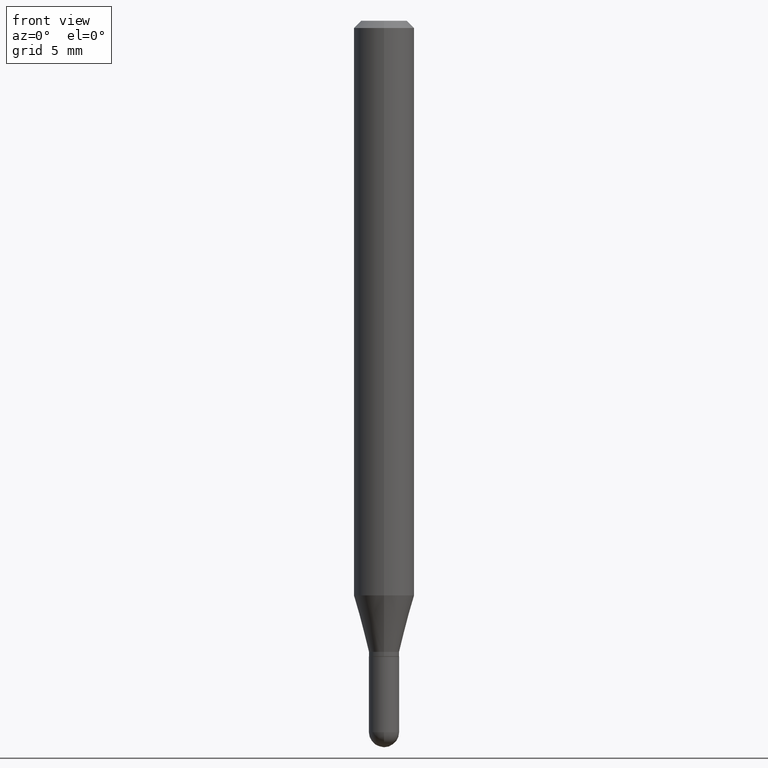
[diagram: clean part render]
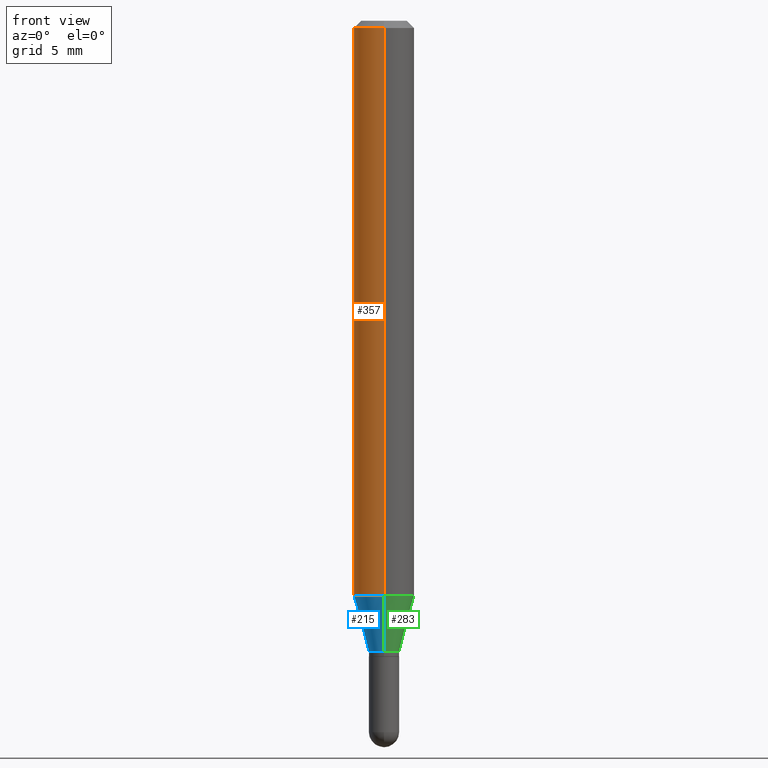
[diagram: same view with three faces highlighted in distinct colors, each labeled with its STEP entity id]
A machine part, front view with three faces highlighted in distinct colors.
Their STEP definitions:

[orange] entity #357 — the highlighted cylindrical surface (edge-blend (fillet) strip) has radius 1.5875 mm, axis along (-0, 0, 1).
#9 = EDGE_CURVE ( 'NONE', #464, #53, #207, .T. ) ;
#10 = VERTEX_POINT ( 'NONE', #313 ) ;
#18 = DIRECTION ( 'NONE',  ( -2.445427662834399299E-29, 3.491540258463135549E-15, 1.000000000000000000 ) ) ;
#53 = VERTEX_POINT ( 'NONE', #382 ) ;
#77 = EDGE_CURVE ( 'NONE', #324, #53, #115, .T. ) ;
#93 = CARTESIAN_POINT ( 'NONE',  ( 4.440892098500626162E-16, 0.06250000000000001388, -2.182212661539459965E-16 ) ) ;
#101 = VECTOR ( 'NONE', #18, 39.37007874015748143 ) ;
#108 = CYLINDRICAL_SURFACE ( 'NONE', #159, 0.06250000000000001388 ) ;
#115 = LINE ( 'NONE', #467, #393 ) ;
#126 = EDGE_CURVE ( 'NONE', #10, #464, #146, .T. ) ;
#127 = EDGE_LOOP ( 'NONE', ( #493, #284, #397, #438 ) ) ;
#146 = LINE ( 'NONE', #93, #101 ) ;
#152 = DIRECTION ( 'NONE',  ( -6.982962677686265133E-15, -1.000000000000000000, 3.491540258463135155E-15 ) ) ;
#153 = DIRECTION ( 'NONE',  ( -6.982962677686265922E-15, -1.000000000000000000, 4.370956789862821150E-15 ) ) ;
#159 = AXIS2_PLACEMENT_3D ( 'NONE', #226, #413, #152 ) ;
#162 = DIRECTION ( 'NONE',  ( -6.982962677686265922E-15, -1.000000000000000000, 3.483106191921934765E-15 ) ) ;
#165 = DIRECTION ( 'NONE',  ( -2.445427662834399299E-29, 3.491540258463135549E-15, 1.000000000000000000 ) ) ;
#192 = CARTESIAN_POINT ( 'NONE',  ( 3.668141494251704677E-31, -5.237310387694854119E-17, -0.01500000000000043313 ) ) ;
#195 = CARTESIAN_POINT ( 'NONE',  ( 2.901190360800337940E-29, -4.142270530488200831E-15, -1.186373412263473703 ) ) ;
#207 = CIRCLE ( 'NONE', #268, 0.06250000000000001388 ) ;
#226 = CARTESIAN_POINT ( 'NONE',  ( 0.000000000000000000, 0.000000000000000000, 0.000000000000000000 ) ) ;
#244 = AXIS2_PLACEMENT_3D ( 'NONE', #195, #429, #153 ) ;
#255 = FACE_OUTER_BOUND ( 'NONE', #127, .T. ) ;
#265 = CARTESIAN_POINT ( 'NONE',  ( 4.440892098500919026E-16, 0.06249999999999997224, -0.01500000000000065170 ) ) ;
#268 = AXIS2_PLACEMENT_3D ( 'NONE', #192, #276, #162 ) ;
#276 = DIRECTION ( 'NONE',  ( -2.445427662834399299E-29, 3.491540258463135549E-15, 1.000000000000000000 ) ) ;
#284 = ORIENTED_EDGE ( 'NONE', *, *, #446, .T. ) ;
#313 = CARTESIAN_POINT ( 'NONE',  ( 4.440892098500914096E-16, 0.06249999999999582279, -1.186373412263473925 ) ) ;
#324 = VERTEX_POINT ( 'NONE', #374 ) ;
#357 = ADVANCED_FACE ( 'NONE', ( #255 ), #108, .T. ) ;
#374 = CARTESIAN_POINT ( 'NONE',  ( -4.364351673553628267E-16, -0.06250000000000417721, -1.186373412263473259 ) ) ;
#382 = CARTESIAN_POINT ( 'NONE',  ( -4.364351673553913736E-16, -0.06250000000000006939, -0.01500000000000021629 ) ) ;
#393 = VECTOR ( 'NONE', #165, 39.37007874015748143 ) ;
#397 = ORIENTED_EDGE ( 'NONE', *, *, #77, .T. ) ;
#413 = DIRECTION ( 'NONE',  ( -2.445427662834399299E-29, 3.491540258463135549E-15, 1.000000000000000000 ) ) ;
#429 = DIRECTION ( 'NONE',  ( -2.445427662834399299E-29, 3.491540258463135549E-15, 1.000000000000000000 ) ) ;
#438 = ORIENTED_EDGE ( 'NONE', *, *, #9, .F. ) ;
#446 = EDGE_CURVE ( 'NONE', #10, #324, #469, .T. ) ;
#464 = VERTEX_POINT ( 'NONE', #265 ) ;
#467 = CARTESIAN_POINT ( 'NONE',  ( -4.364351673553916694E-16, -0.06250000000000001388, 2.182212661539459965E-16 ) ) ;
#469 = CIRCLE ( 'NONE', #244, 0.06250000000000000000 ) ;
#493 = ORIENTED_EDGE ( 'NONE', *, *, #126, .F. ) ;

[blue] entity #215 — the highlighted conical surface has half-angle 15 deg.
#10 = VERTEX_POINT ( 'NONE', #313 ) ;
#11 = AXIS2_PLACEMENT_3D ( 'NONE', #196, #462, #106 ) ;
#14 = EDGE_CURVE ( 'NONE', #29, #10, #225, .T. ) ;
#29 = VERTEX_POINT ( 'NONE', #151 ) ;
#106 = DIRECTION ( 'NONE',  ( -6.982962677686265922E-15, -1.000000000000000000, 0.000000000000000000 ) ) ;
#111 = ORIENTED_EDGE ( 'NONE', *, *, #14, .F. ) ;
#142 = ORIENTED_EDGE ( 'NONE', *, *, #271, .T. ) ;
#145 = LINE ( 'NONE', #181, #168 ) ;
#148 = AXIS2_PLACEMENT_3D ( 'NONE', #253, #222, #289 ) ;
#151 = CARTESIAN_POINT ( 'NONE',  ( 3.330669073875781221E-16, 0.03124999999999564237, -1.302999999999999936 ) ) ;
#153 = DIRECTION ( 'NONE',  ( -6.982962677686265922E-15, -1.000000000000000000, 4.370956789862821150E-15 ) ) ;
#168 = VECTOR ( 'NONE', #217, 39.37007874015749564 ) ;
#181 = CARTESIAN_POINT ( 'NONE',  ( -2.182175836776652910E-16, -0.03125000000000474620, -1.302999999999999936 ) ) ;
#182 = ORIENTED_EDGE ( 'NONE', *, *, #304, .T. ) ;
#191 = VECTOR ( 'NONE', #501, 39.37007874015747433 ) ;
#195 = CARTESIAN_POINT ( 'NONE',  ( 2.901190360800337940E-29, -4.142270530488200831E-15, -1.186373412263473703 ) ) ;
#196 = CARTESIAN_POINT ( 'NONE',  ( 3.186392244673222782E-29, -4.549476956777466596E-15, -1.302999999999999936 ) ) ;
#215 = ADVANCED_FACE ( 'NONE', ( #261 ), #290, .T. ) ;
#217 = DIRECTION ( 'NONE',  ( -1.807323732225328562E-15, -0.2588190451025179639, 0.9659258262890689783 ) ) ;
#222 = DIRECTION ( 'NONE',  ( -2.445427662834399299E-29, 3.491540258463135549E-15, 1.000000000000000000 ) ) ;
#225 = LINE ( 'NONE', #343, #191 ) ;
#244 = AXIS2_PLACEMENT_3D ( 'NONE', #195, #429, #153 ) ;
#253 = CARTESIAN_POINT ( 'NONE',  ( 3.186392244673222782E-29, -4.549476956777466596E-15, -1.302999999999999936 ) ) ;
#261 = FACE_OUTER_BOUND ( 'NONE', #441, .T. ) ;
#271 = EDGE_CURVE ( 'NONE', #29, #282, #279, .T. ) ;
#279 = CIRCLE ( 'NONE', #11, 0.03125000000000019429 ) ;
#282 = VERTEX_POINT ( 'NONE', #365 ) ;
#289 = DIRECTION ( 'NONE',  ( -6.982962677686265922E-15, -1.000000000000000000, 0.000000000000000000 ) ) ;
#290 = CONICAL_SURFACE ( 'NONE', #148, 0.03125000000000019429, 0.2617993877991501295 ) ;
#304 = EDGE_CURVE ( 'NONE', #282, #324, #145, .T. ) ;
#313 = CARTESIAN_POINT ( 'NONE',  ( 4.440892098500914096E-16, 0.06249999999999582279, -1.186373412263473925 ) ) ;
#324 = VERTEX_POINT ( 'NONE', #374 ) ;
#343 = CARTESIAN_POINT ( 'NONE',  ( 2.220446049250645389E-16, 0.03124999999999564584, -1.302999999999999936 ) ) ;
#365 = CARTESIAN_POINT ( 'NONE',  ( -2.182175836776652910E-16, -0.03125000000000474620, -1.302999999999999936 ) ) ;
#374 = CARTESIAN_POINT ( 'NONE',  ( -4.364351673553628267E-16, -0.06250000000000417721, -1.186373412263473259 ) ) ;
#394 = ORIENTED_EDGE ( 'NONE', *, *, #446, .F. ) ;
#429 = DIRECTION ( 'NONE',  ( -2.445427662834399299E-29, 3.491540258463135549E-15, 1.000000000000000000 ) ) ;
#441 = EDGE_LOOP ( 'NONE', ( #111, #142, #182, #394 ) ) ;
#446 = EDGE_CURVE ( 'NONE', #10, #324, #469, .T. ) ;
#462 = DIRECTION ( 'NONE',  ( -2.445427662834399299E-29, 3.491540258463135549E-15, 1.000000000000000000 ) ) ;
#469 = CIRCLE ( 'NONE', #244, 0.06250000000000000000 ) ;
#501 = DIRECTION ( 'NONE',  ( 1.839019923739599526E-15, 0.2588190451025248473, 0.9659258262890673130 ) ) ;

[green] entity #283 — the highlighted conical surface has half-angle 15 deg.
#4 = CIRCLE ( 'NONE', #437, 0.06250000000000000000 ) ;
#6 = FACE_OUTER_BOUND ( 'NONE', #481, .T. ) ;
#10 = VERTEX_POINT ( 'NONE', #313 ) ;
#14 = EDGE_CURVE ( 'NONE', #29, #10, #225, .T. ) ;
#29 = VERTEX_POINT ( 'NONE', #151 ) ;
#37 = CARTESIAN_POINT ( 'NONE',  ( 2.901190360800337940E-29, -4.142270530488200831E-15, -1.186373412263473703 ) ) ;
#39 = CIRCLE ( 'NONE', #331, 0.03125000000000019429 ) ;
#65 = EDGE_CURVE ( 'NONE', #282, #29, #39, .T. ) ;
#81 = ORIENTED_EDGE ( 'NONE', *, *, #304, .F. ) ;
#85 = DIRECTION ( 'NONE',  ( -6.982962677686265922E-15, -1.000000000000000000, 0.000000000000000000 ) ) ;
#129 = CARTESIAN_POINT ( 'NONE',  ( 3.186392244673222782E-29, -4.549476956777466596E-15, -1.302999999999999936 ) ) ;
#145 = LINE ( 'NONE', #181, #168 ) ;
#151 = CARTESIAN_POINT ( 'NONE',  ( 3.330669073875781221E-16, 0.03124999999999564237, -1.302999999999999936 ) ) ;
#161 = DIRECTION ( 'NONE',  ( -6.982962677686265922E-15, -1.000000000000000000, 4.370956789862821150E-15 ) ) ;
#168 = VECTOR ( 'NONE', #217, 39.37007874015749564 ) ;
#177 = DIRECTION ( 'NONE',  ( -2.445427662834399299E-29, 3.491540258463135549E-15, 1.000000000000000000 ) ) ;
#181 = CARTESIAN_POINT ( 'NONE',  ( -2.182175836776652910E-16, -0.03125000000000474620, -1.302999999999999936 ) ) ;
#191 = VECTOR ( 'NONE', #501, 39.37007874015747433 ) ;
#217 = DIRECTION ( 'NONE',  ( -1.807323732225328562E-15, -0.2588190451025179639, 0.9659258262890689783 ) ) ;
#225 = LINE ( 'NONE', #343, #191 ) ;
#229 = CARTESIAN_POINT ( 'NONE',  ( 3.186392244673222782E-29, -4.549476956777466596E-15, -1.302999999999999936 ) ) ;
#251 = EDGE_CURVE ( 'NONE', #324, #10, #4, .T. ) ;
#282 = VERTEX_POINT ( 'NONE', #365 ) ;
#283 = ADVANCED_FACE ( 'NONE', ( #6 ), #340, .T. ) ;
#304 = EDGE_CURVE ( 'NONE', #282, #324, #145, .T. ) ;
#313 = CARTESIAN_POINT ( 'NONE',  ( 4.440892098500914096E-16, 0.06249999999999582279, -1.186373412263473925 ) ) ;
#324 = VERTEX_POINT ( 'NONE', #374 ) ;
#331 = AXIS2_PLACEMENT_3D ( 'NONE', #229, #356, #504 ) ;
#340 = CONICAL_SURFACE ( 'NONE', #405, 0.03125000000000019429, 0.2617993877991501295 ) ;
#343 = CARTESIAN_POINT ( 'NONE',  ( 2.220446049250645389E-16, 0.03124999999999564584, -1.302999999999999936 ) ) ;
#356 = DIRECTION ( 'NONE',  ( -2.445427662834399299E-29, 3.491540258463135549E-15, 1.000000000000000000 ) ) ;
#365 = CARTESIAN_POINT ( 'NONE',  ( -2.182175836776652910E-16, -0.03125000000000474620, -1.302999999999999936 ) ) ;
#374 = CARTESIAN_POINT ( 'NONE',  ( -4.364351673553628267E-16, -0.06250000000000417721, -1.186373412263473259 ) ) ;
#389 = ORIENTED_EDGE ( 'NONE', *, *, #251, .F. ) ;
#399 = ORIENTED_EDGE ( 'NONE', *, *, #14, .T. ) ;
#405 = AXIS2_PLACEMENT_3D ( 'NONE', #129, #177, #85 ) ;
#435 = DIRECTION ( 'NONE',  ( -2.445427662834399299E-29, 3.491540258463135549E-15, 1.000000000000000000 ) ) ;
#437 = AXIS2_PLACEMENT_3D ( 'NONE', #37, #435, #161 ) ;
#457 = ORIENTED_EDGE ( 'NONE', *, *, #65, .T. ) ;
#481 = EDGE_LOOP ( 'NONE', ( #457, #399, #389, #81 ) ) ;
#501 = DIRECTION ( 'NONE',  ( 1.839019923739599526E-15, 0.2588190451025248473, 0.9659258262890673130 ) ) ;
#504 = DIRECTION ( 'NONE',  ( -6.982962677686265922E-15, -1.000000000000000000, 0.000000000000000000 ) ) ;